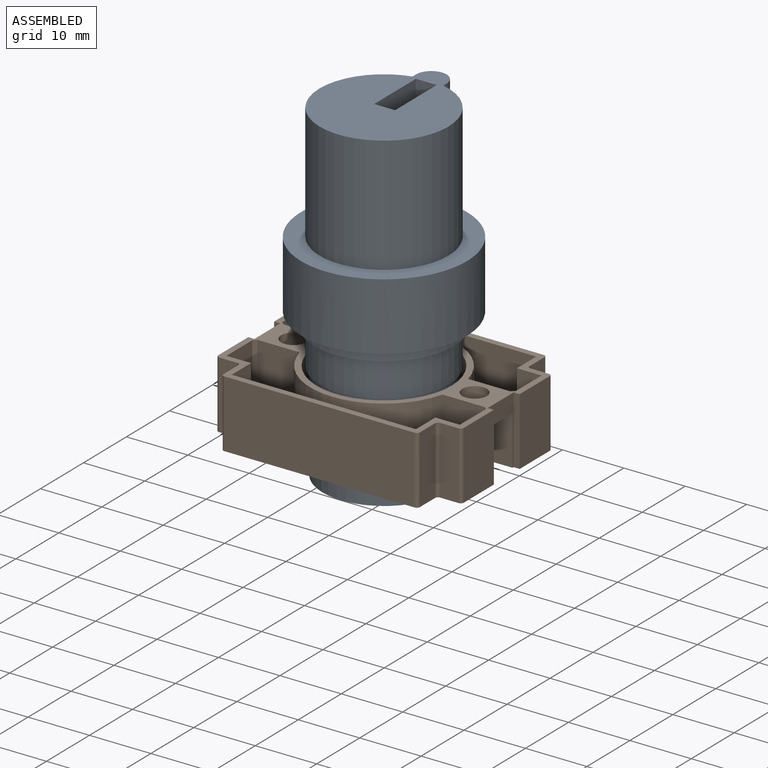
[diagram: assembled view]
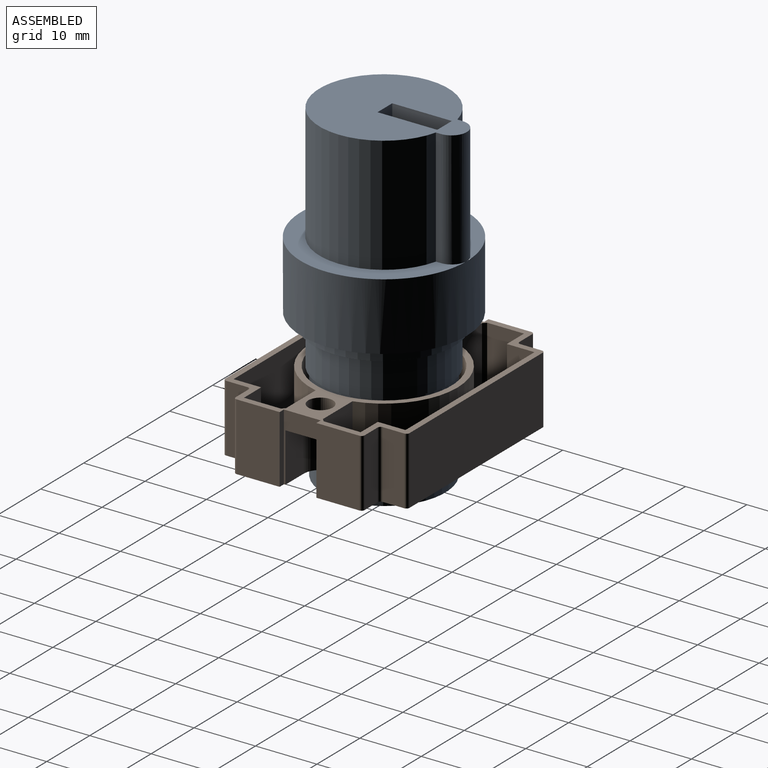
[diagram: assembled view, second angle]
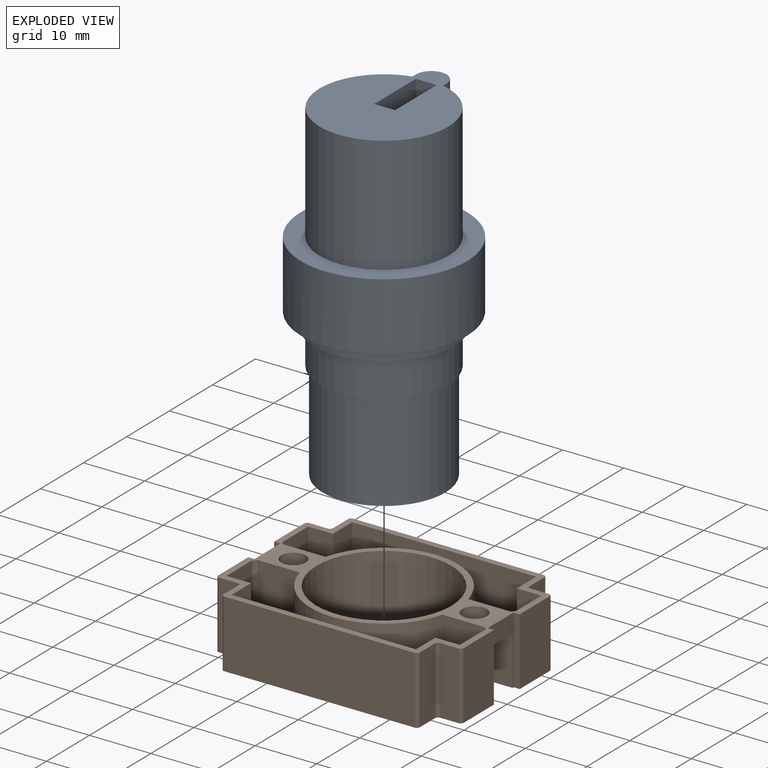
[diagram: exploded view]
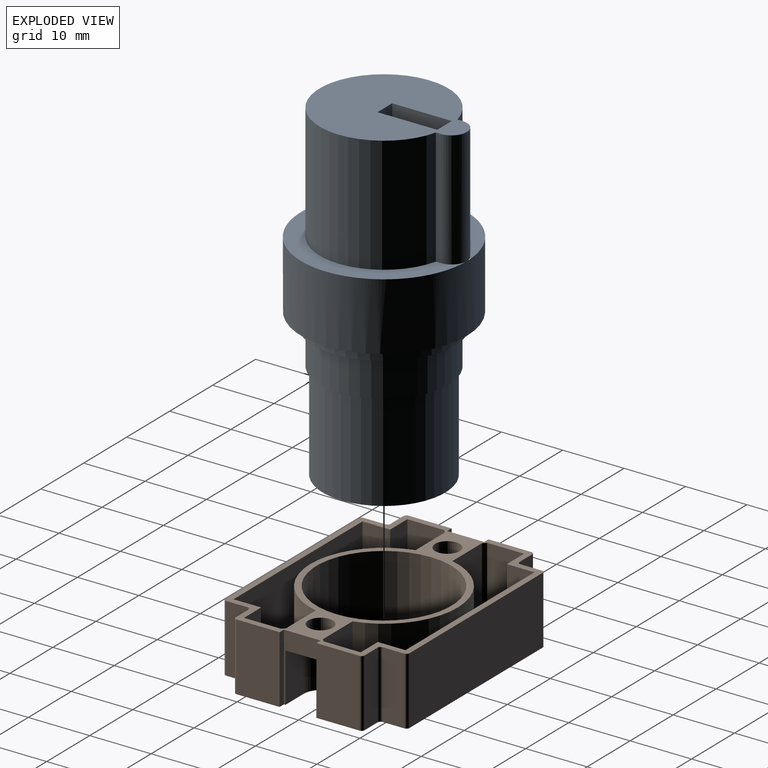
[diagram: exploded view, second angle]
ASSEMBLY  parts=2 mates=2
PART A: 19 faces, bbox 27x27x54 mm
  f0: cylinder r=10.5mm len=21mm, axis (0,0,-1), area 1157.6mm2, adj f1,f9,f17,f18
  f1: plane 24x21mm, normal (0,0,1), area 326mm2, adj f0,f11,f12,f13,f14,f16,f17,f18
  f2: cylinder r=10mm len=20mm, axis (0,0,-1), area 1005.3mm2, adj f3,f5
  f3: plane 20x20mm, normal (0,0,-1), area 314.2mm2, adj f2
  f4: cylinder r=10.5mm len=21mm, axis (0,0,-1), area 395.8mm2, adj f5,f7
  f5: plane 21x21mm, normal (0,0,-1), area 32.2mm2, adj f2,f4
  f6: cylinder r=11.5mm len=23mm, axis (0,0,-1), area 144.5mm2, adj f7,f10
  f7: plane 23x23mm, normal (0,0,-1), area 69.1mm2, adj f4,f6
  f8: cylinder r=13.5mm len=27mm, axis (0,0,-1), area 933.1mm2, adj f9,f10
  f9: plane 27x27mm, normal (0,0,1), area 213.4mm2, adj f0,f8,f16,f17,f18
  f10: plane 27x27mm, normal (0,0,-1), area 157.1mm2, adj f6,f8
  f11: plane 10x3.42mm, normal (0,-1,0), area 34.2mm2, adj f1,f12,f14,f15
  f12: plane 10x9.73mm, normal (1,0,0), area 97.2mm2, adj f1,f11,f13,f15
  f13: plane 10x3.42mm, normal (0,1,0), area 34.2mm2, adj f1,f12,f14,f15
  f14: plane 10x9.73mm, normal (-1,0,0), area 97.2mm2, adj f1,f11,f13,f15
  f15: plane 9.73x3.42mm, normal (0,0,1), area 33.2mm2, adj f11,f12,f13,f14
  f16: cylinder r=2.5mm len=19mm, axis (0,0,1), area 149.2mm2, adj f1,f9,f17,f18
  f17: plane 19x0.8mm, normal (-1,0,0), area 15.2mm2, adj f0,f1,f9,f16
  f18: plane 19x0.8mm, normal (1,0,0), area 15.2mm2, adj f0,f1,f9,f16
PART B: 71 faces, bbox 40x30x11 mm
  f0: plane 40x30mm, normal (0,0,-1), area 665.1mm2, adj f1,f2,f3,f9,f10,f11,f12,f13
  f1: plane 11x6mm, normal (-1,0,0), area 22mm2, adj f0,f4,f47,f48,f50,f51,f52
  f2: plane 11x7mm, normal (-1,0,0), area 77mm2, adj f0,f4,f48,f70
  f3: plane 11x7mm, normal (1,0,0), area 77mm2, adj f0,f4,f46,f65
  f4: plane 40x30mm, normal (0,0,1), area 256.9mm2, adj f1,f2,f3,f5,f7,f8,f9,f10
  f5: plane 10x6mm, normal (-1,0,0), area 60mm2, adj f4,f29,f33,f40
  f6: plane 38x11mm, normal (0,0,1), area 226.8mm2, adj f7,f8,f21,f22,f23,f30,f31,f32
  f7: cylinder r=12mm len=23.24mm, axis (0,0,-1), area 316.3mm2, adj f4,f6,f36,f39
  f8: plane 10x6mm, normal (1,0,0), area 60mm2, adj f4,f6,f23,f43
  f9: plane 31x11mm, normal (0,1,0), area 341mm2, adj f0,f4,f59,f63
  f10: plane 11x7mm, normal (-1,0,0), area 77mm2, adj f0,f4,f47,f61
  f11: plane 31x11mm, normal (0,-1,0), area 341mm2, adj f0,f4,f67,f69
  f12: plane 11x7mm, normal (1,0,0), area 77mm2, adj f0,f4,f44,f64
  f13: plane 11x3mm, normal (0,-1,0), area 33mm2, adj f0,f4,f68,f70
  f14: plane 11x3.5mm, normal (-1,0,0), area 38.5mm2, adj f0,f4,f68,f69
  f15: plane 11x3mm, normal (0,-1,0), area 33mm2, adj f0,f4,f65,f66
  f16: plane 11x3.5mm, normal (1,0,0), area 38.5mm2, adj f0,f4,f66,f67
  f17: plane 11x3mm, normal (0,1,0), area 33mm2, adj f0,f4,f62,f64
  f18: plane 11x3.5mm, normal (1,0,0), area 38.5mm2, adj f0,f4,f62,f63
  f19: plane 11x3mm, normal (0,1,0), area 33mm2, adj f0,f4,f60,f61
  f20: plane 11x3.5mm, normal (-1,0,0), area 38.5mm2, adj f0,f4,f59,f60
  f21: plane 30x10mm, normal (0,-1,0), area 300mm2, adj f4,f6,f22,f32
  f22: plane 10x4.5mm, normal (1,0,0), area 45mm2, adj f4,f6,f21,f23
  f23: plane 10x4mm, normal (0,-1,0), area 40mm2, adj f4,f6,f8,f22
  f24: plane 10x6mm, normal (1,0,0), area 60mm2, adj f4,f25,f33,f42
  f25: plane 10x4mm, normal (0,1,0), area 40mm2, adj f4,f24,f26,f33
  f26: plane 10x4.5mm, normal (1,0,0), area 45mm2, adj f4,f25,f27,f33
  f27: plane 30x10mm, normal (0,1,0), area 300mm2, adj f4,f26,f28,f33
  f28: plane 10x4.5mm, normal (-1,0,0), area 45mm2, adj f4,f27,f29,f33
  f29: plane 10x4mm, normal (0,1,0), area 40mm2, adj f4,f5,f28,f33
  f30: plane 10x6mm, normal (-1,0,0), area 60mm2, adj f4,f6,f31,f41
  f31: plane 10x4mm, normal (0,-1,0), area 40mm2, adj f4,f6,f30,f32
  f32: plane 10x4.5mm, normal (-1,0,0), area 45mm2, adj f4,f6,f21,f31
  f33: plane 38x11mm, normal (0,0,1), area 226.8mm2, adj f5,f24,f25,f26,f27,f28,f29,f35
  f34: cylinder r=11mm len=22mm, axis (0,0,-1), area 760.3mm2, adj f0,f4
  f35: cylinder r=12mm len=23.24mm, axis (0,0,-1), area 316.3mm2, adj f4,f33,f37,f38
  f36: plane 10x6.88mm, normal (0,1,0), area 68.8mm2, adj f4,f6,f7,f43
  f37: plane 10x6.88mm, normal (0,-1,0), area 68.8mm2, adj f4,f33,f35,f42
  f38: plane 10x6.88mm, normal (0,-1,0), area 68.8mm2, adj f4,f33,f35,f40
  f39: plane 10x6.88mm, normal (0,1,0), area 68.8mm2, adj f4,f6,f7,f41
  f40: plane 10x0.5mm, normal (-0.71,-0.71,0), area 7.1mm2, adj f4,f5,f33,f38
  f41: plane 10x0.5mm, normal (-0.71,0.71,0), area 7.1mm2, adj f4,f6,f30,f39
  f42: plane 10x0.5mm, normal (0.71,-0.71,0), area 7.1mm2, adj f4,f24,f33,f37
  f43: plane 10x0.5mm, normal (0.71,0.71,0), area 7.1mm2, adj f4,f6,f8,f36
  f44: plane 11x1mm, normal (0,-1,0), area 11mm2, adj f0,f4,f12,f45
  f45: plane 11x6mm, normal (1,0,0), area 22mm2, adj f0,f4,f44,f46,f53,f55,f56
  f46: plane 11x1mm, normal (0,1,0), area 11mm2, adj f0,f3,f4,f45
  f47: plane 11x1mm, normal (0,-1,0), area 11mm2, adj f0,f1,f4,f10
  f48: plane 11x1mm, normal (0,1,0), area 11mm2, adj f0,f1,f2,f4
  f49: cylinder r=2.75mm len=8mm, axis (0,0,-1), area 69.1mm2, adj f0,f50,f51,f52
  f50: plane 8x4.25mm, normal (0,1,0), area 34mm2, adj f0,f1,f49,f52
  f51: plane 8x4.25mm, normal (0,-1,0), area 34mm2, adj f0,f1,f49,f52
  f52: plane 7x5.5mm, normal (0,0,-1), area 22.7mm2, adj f1,f49,f50,f51,f58
  f53: plane 8x4.25mm, normal (0,1,0), area 34mm2, adj f0,f45,f54,f56
  f54: cylinder r=2.75mm len=8mm, axis (0,0,-1), area 69.1mm2, adj f0,f53,f55,f56
  f55: plane 8x4.25mm, normal (0,-1,0), area 34mm2, adj f0,f45,f54,f56
  f56: plane 7x5.5mm, normal (0,0,-1), area 22.7mm2, adj f45,f53,f54,f55,f57
  f57: cylinder r=2mm len=4mm, axis (0,0,-1), area 37.7mm2, adj f4,f56
  f58: cylinder r=2mm len=4mm, axis (0,0,-1), area 37.7mm2, adj f4,f52
  f59: cylinder r=0.5mm len=11mm, axis (0,0,1), area 8.6mm2, adj f0,f4,f9,f20
  f60: cylinder r=0.5mm len=11mm, axis (0,0,1), area 8.6mm2, adj f0,f4,f19,f20
  f61: cylinder r=0.5mm len=11mm, axis (0,0,1), area 8.6mm2, adj f0,f4,f10,f19
  f62: cylinder r=0.5mm len=11mm, axis (0,0,1), area 8.6mm2, adj f0,f4,f17,f18
  f63: cylinder r=0.5mm len=11mm, axis (0,0,-1), area 8.6mm2, adj f0,f4,f9,f18
  f64: cylinder r=0.5mm len=11mm, axis (0,0,1), area 8.6mm2, adj f0,f4,f12,f17
  f65: cylinder r=0.5mm len=11mm, axis (0,0,-1), area 8.6mm2, adj f0,f3,f4,f15
  f66: cylinder r=0.5mm len=11mm, axis (0,0,1), area 8.6mm2, adj f0,f4,f15,f16
  f67: cylinder r=0.5mm len=11mm, axis (0,0,-1), area 8.6mm2, adj f0,f4,f11,f16
  f68: cylinder r=0.5mm len=11mm, axis (0,0,1), area 8.6mm2, adj f0,f4,f13,f14
  f69: cylinder r=0.5mm len=11mm, axis (0,0,1), area 8.6mm2, adj f0,f4,f11,f14
  f70: cylinder r=0.5mm len=11mm, axis (0,0,-1), area 8.6mm2, adj f0,f2,f4,f13
PLACE A t=(0.01,-0.07,-10.61)mm
PLACE B t=(0.01,-0.07,-5.61)mm fixed
MATE cylindrical B.f34 <-> A.f2  axis (0,0,-1) through (0.01,-0.07,-0.11)mm
MATE planar A.f2 <-> B.f4  axis (0,0,-1) through (0.01,-0.07,5.39)mm
